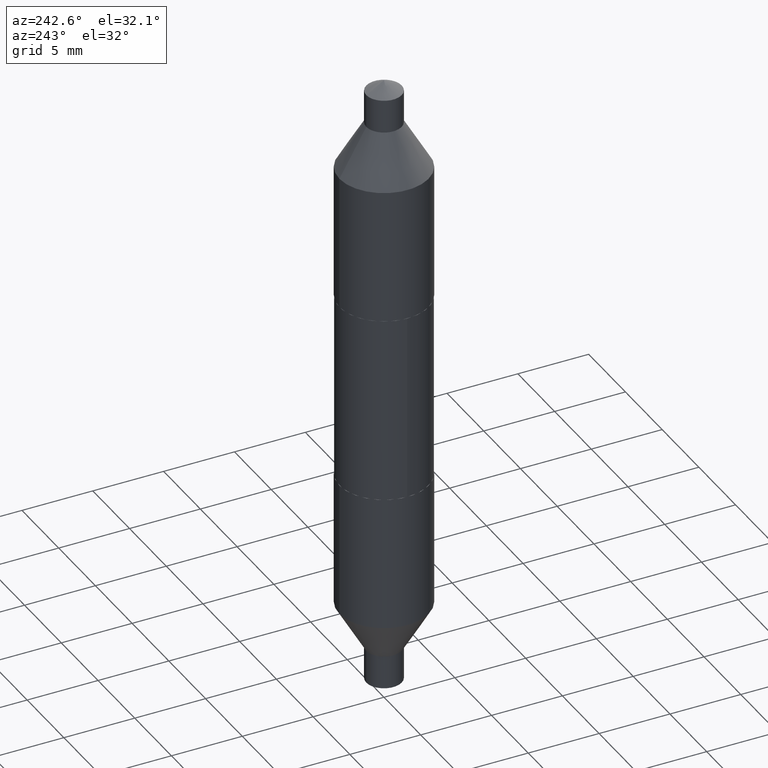
[diagram: clean part render]
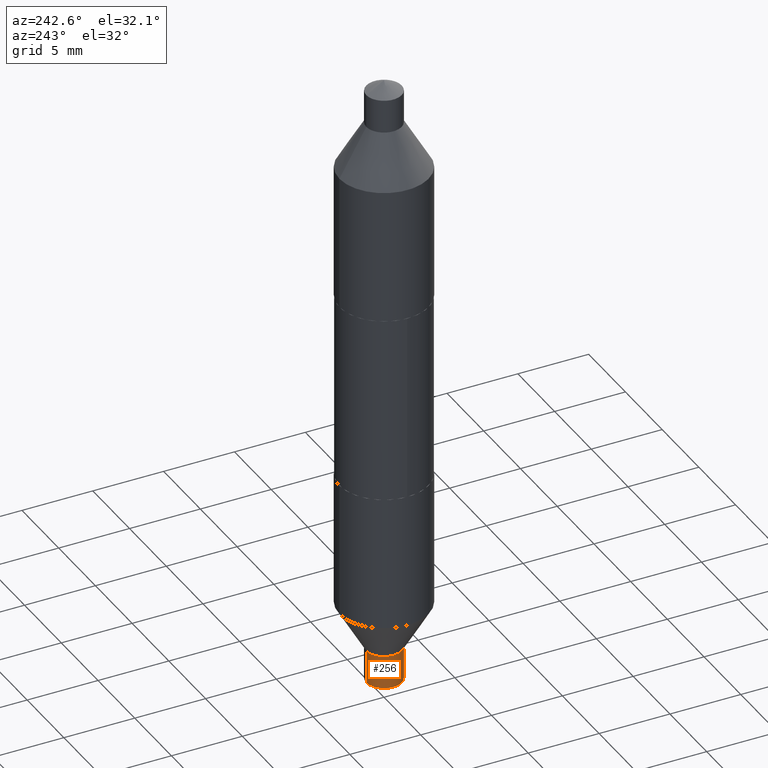
[diagram: same view with one face highlighted and labeled with its STEP entity id]
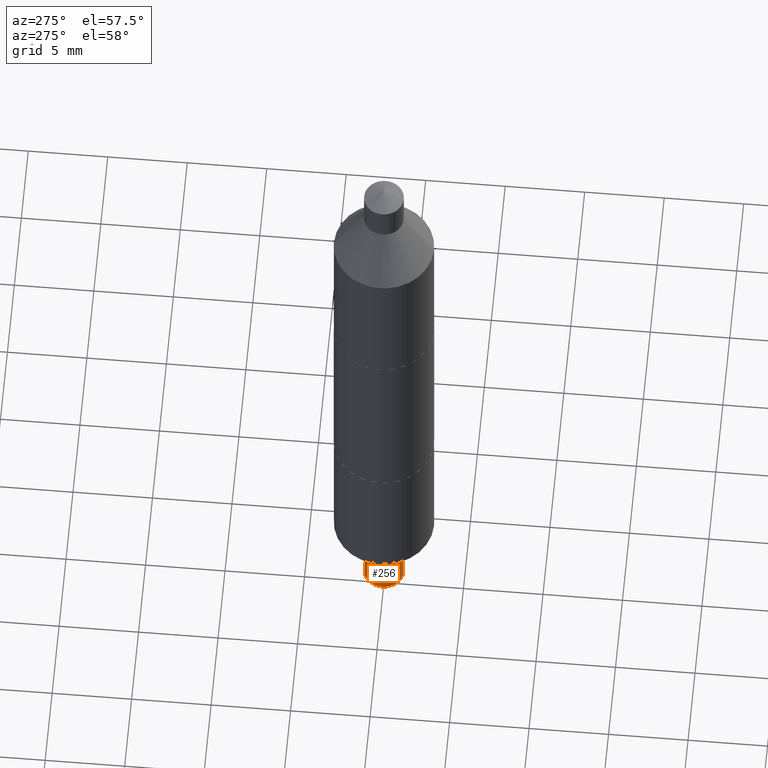
[diagram: same view with one face highlighted and labeled with its STEP entity id]
A machine part, auxiliary view. The second image highlights one B-rep face of the part: STEP entity #256.
A second angle (auxiliary view) of the same face is appended — the face is thin or edge-on in the first view.
In plain terms, the highlighted cylindrical surface (edge-blend (fillet) strip) has radius 1.2497 mm, axis along (-0, 0, 1).
Its self-contained STEP definition (entity closure, byte-faithful):
#42 = CARTESIAN_POINT ( 'NONE',  ( -3.435617637421579667E-16, -0.04920000000000091661, -0.2599999999999997868 ) ) ;
#90 = CIRCLE ( 'NONE', #356, 0.04920000000000000762 ) ;
#94 = DIRECTION ( 'NONE',  ( -2.431786145558266380E-29, 3.511075687629503585E-15, 1.000000000000000000 ) ) ;
#108 = DIRECTION ( 'NONE',  ( -6.982962677686265922E-15, -1.000000000000000000, 2.776268286244169687E-15 ) ) ;
#110 = AXIS2_PLACEMENT_3D ( 'NONE', #165, #317, #279 ) ;
#115 = ORIENTED_EDGE ( 'NONE', *, *, #389, .F. ) ;
#117 = EDGE_LOOP ( 'NONE', ( #682, #173, #650, #115 ) ) ;
#121 = CARTESIAN_POINT ( 'NONE',  ( -3.435617637421457394E-16, -0.04920000000000267909, -0.7629999999999999005 ) ) ;
#128 = LINE ( 'NONE', #664, #642 ) ;
#131 = DIRECTION ( 'NONE',  ( -2.431786145558266380E-29, 3.511075687629503585E-15, 1.000000000000000000 ) ) ;
#142 = LINE ( 'NONE', #42, #365 ) ;
#153 = DIRECTION ( 'NONE',  ( -6.982962677686265922E-15, -1.000000000000000000, 3.470335357805211813E-15 ) ) ;
#165 = CARTESIAN_POINT ( 'NONE',  ( 1.859010320823943778E-29, -2.673856218976857578E-15, -0.7630000000000000115 ) ) ;
#173 = ORIENTED_EDGE ( 'NONE', *, *, #361, .T. ) ;
#220 = EDGE_CURVE ( 'NONE', #334, #489, #142, .T. ) ;
#256 = ADVANCED_FACE ( 'NONE', ( #314 ), #299, .T. ) ;
#263 = CARTESIAN_POINT ( 'NONE',  ( 3.495870259939901518E-16, 0.04919999999999733614, -0.7630000000000001226 ) ) ;
#267 = VERTEX_POINT ( 'NONE', #263 ) ;
#279 = DIRECTION ( 'NONE',  ( -6.982962677686265922E-15, -1.000000000000000000, 2.776268286244169687E-15 ) ) ;
#299 = CYLINDRICAL_SURFACE ( 'NONE', #536, 0.04920000000000000762 ) ;
#314 = FACE_OUTER_BOUND ( 'NONE', #117, .T. ) ;
#317 = DIRECTION ( 'NONE',  ( -2.431786145558266380E-29, 3.511075687629503191E-15, 1.000000000000000000 ) ) ;
#333 = CARTESIAN_POINT ( 'NONE',  ( 3.495870259939900532E-16, 0.04919999999999699614, -0.8554376575438443764 ) ) ;
#334 = VERTEX_POINT ( 'NONE', #543 ) ;
#356 = AXIS2_PLACEMENT_3D ( 'NONE', #695, #647, #108 ) ;
#361 = EDGE_CURVE ( 'NONE', #502, #334, #90, .T. ) ;
#365 = VECTOR ( 'NONE', #94, 39.37007874015748143 ) ;
#372 = CIRCLE ( 'NONE', #110, 0.04920000000000000762 ) ;
#389 = EDGE_CURVE ( 'NONE', #267, #489, #372, .T. ) ;
#489 = VERTEX_POINT ( 'NONE', #121 ) ;
#502 = VERTEX_POINT ( 'NONE', #333 ) ;
#536 = AXIS2_PLACEMENT_3D ( 'NONE', #678, #634, #153 ) ;
#543 = CARTESIAN_POINT ( 'NONE',  ( -3.435617637421434714E-16, -0.04920000000000299828, -0.8554376575438440433 ) ) ;
#566 = EDGE_CURVE ( 'NONE', #502, #267, #128, .T. ) ;
#634 = DIRECTION ( 'NONE',  ( -2.431786145558266380E-29, 3.511075687629503191E-15, 1.000000000000000000 ) ) ;
#642 = VECTOR ( 'NONE', #131, 39.37007874015748143 ) ;
#647 = DIRECTION ( 'NONE',  ( -2.431786145558266380E-29, 3.511075687629503191E-15, 1.000000000000000000 ) ) ;
#650 = ORIENTED_EDGE ( 'NONE', *, *, #220, .T. ) ;
#664 = CARTESIAN_POINT ( 'NONE',  ( 3.495870259939756565E-16, 0.04919999999999910556, -0.2600000000000001199 ) ) ;
#678 = CARTESIAN_POINT ( 'NONE',  ( 6.358218896081354143E-30, -9.077851480992177489E-16, -0.2599999999999999534 ) ) ;
#682 = ORIENTED_EDGE ( 'NONE', *, *, #566, .F. ) ;
#695 = CARTESIAN_POINT ( 'NONE',  ( 2.083798935766923315E-29, -2.998411831000471472E-15, -0.8554376575438441543 ) ) ;